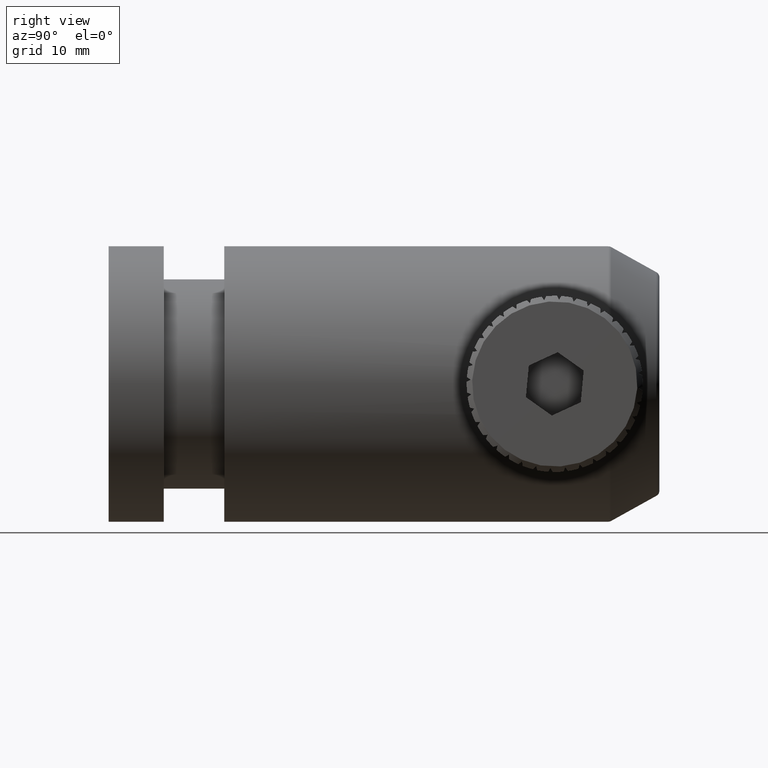
[diagram: clean part render]
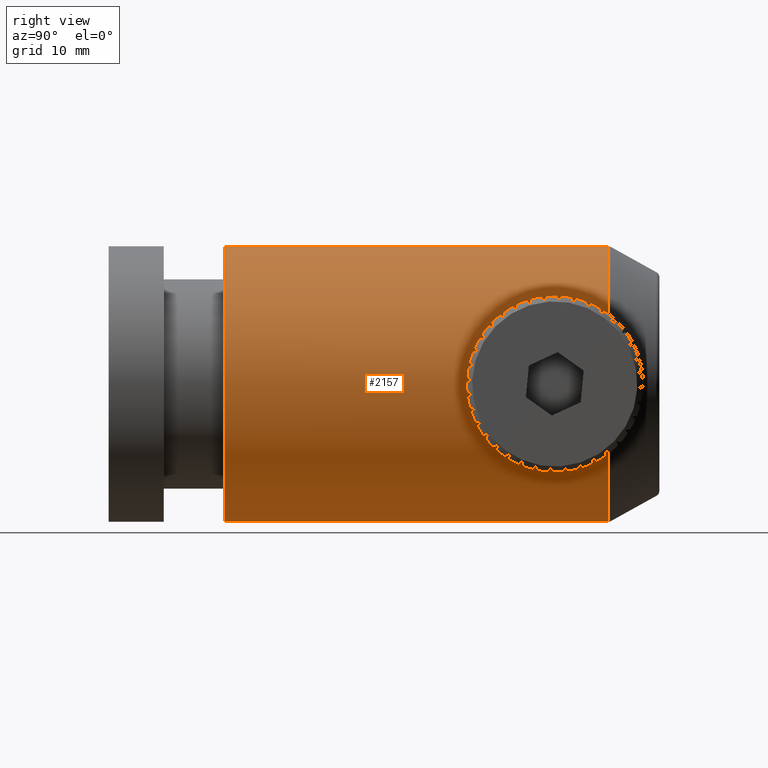
[diagram: same view with one face highlighted and labeled with its STEP entity id]
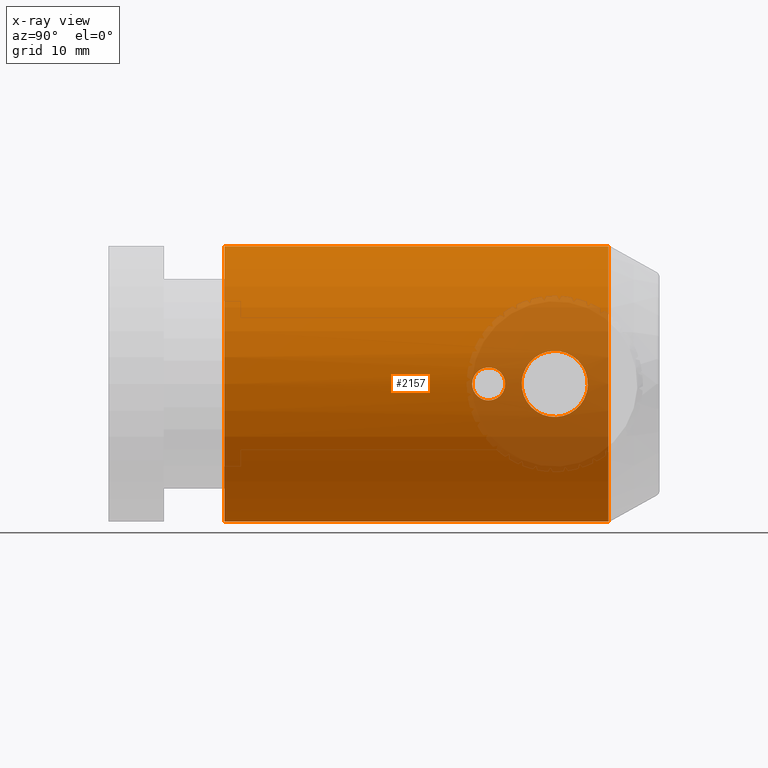
[diagram: x-ray of the same camera — body ghosted, the highlighted face saturated]
A machine part, right view. The second image highlights one B-rep face of the part: STEP entity #2157.
The next image is the same camera in x-ray: the body ghosted, the highlighted face saturated — about 16% of this face is hidden behind the body in this view.
In plain terms, the highlighted cylindrical surface (partial cylindrical patch) has radius 12.5 mm, axis along (-0, -1, -0).
Its self-contained STEP definition (entity closure, byte-faithful):
#62 = EDGE_LOOP ( 'NONE', ( #3802, #4870 ) ) ;
#143 = CARTESIAN_POINT ( 'NONE',  ( 8.979085875243944415, 27.57827545239257105, -2.794805594405598725 ) ) ;
#187 = CARTESIAN_POINT ( 'NONE',  ( 9.294317401501471565, 25.69015654449285790, 0.1503243900348047724 ) ) ;
#295 = CARTESIAN_POINT ( 'NONE',  ( -3.204778668925408081, -1.313612059609841731, 12.50000000000000000 ) ) ;
#354 = CARTESIAN_POINT ( 'NONE',  ( 9.284975426717135605, 25.72899438771105451, 0.5413697073677409266 ) ) ;
#403 = CARTESIAN_POINT ( 'NONE',  ( 9.038241287134486157, 30.31915226777572059, 2.524436542601555367 ) ) ;
#449 = CARTESIAN_POINT ( 'NONE',  ( 8.940450512637534430, 29.22795995841076078, 2.957344223499729807 ) ) ;
#522 = DIRECTION ( 'NONE',  ( 0.0000000000000000000, 0.0000000000000000000, 1.000000000000000000 ) ) ;
#542 = CARTESIAN_POINT ( 'NONE',  ( 9.204903389921662793, 22.88279855186688039, 1.499930399462187758 ) ) ;
#547 = ORIENTED_EDGE ( 'NONE', *, *, #4873, .T. ) ;
#585 = CARTESIAN_POINT ( 'NONE',  ( 9.295221331074595028, 21.18638794039016915, 0.09793511306896243718 ) ) ;
#614 = LINE ( 'NONE', #6234, #8294 ) ;
#639 = CARTESIAN_POINT ( 'NONE',  ( 9.295221331074591475, 24.18638794039016560, -2.591424933792135339E-15 ) ) ;
#712 = AXIS2_PLACEMENT_3D ( 'NONE', #6192, #4131, #522 ) ;
#744 = CARTESIAN_POINT ( 'NONE',  ( 8.940587165036291140, 28.14242673749529899, -2.956775256058381096 ) ) ;
#785 = CARTESIAN_POINT ( 'NONE',  ( 9.269307545164291895, 25.79554538581863099, -0.8255565456681704939 ) ) ;
#831 = CARTESIAN_POINT ( 'NONE',  ( 9.084389525700469648, 26.72650415562357651, -2.305151525173003257 ) ) ;
#886 = EDGE_CURVE ( 'NONE', #6245, #4474, #3851, .T. ) ;
#921 = CARTESIAN_POINT ( 'NONE',  ( 9.262588171472192045, 31.54775118645238052, -0.9224847574950779672 ) ) ;
#948 = VERTEX_POINT ( 'NONE', #1360 ) ;
#953 = CARTESIAN_POINT ( 'NONE',  ( 8.956566280400332758, 27.86008858570201241, 2.890742176345407533 ) ) ;
#966 = CARTESIAN_POINT ( 'NONE',  ( 9.211884100376778406, 22.26983743135785687, -1.441001621589988790 ) ) ;
#999 = CARTESIAN_POINT ( 'NONE',  ( 8.963613499397279583, 29.61184800982138299, 2.860543439079102690 ) ) ;
#1095 = CARTESIAN_POINT ( 'NONE',  ( 8.987546613366735215, 27.48753205401871469, 2.757155330657440118 ) ) ;
#1111 = CARTESIAN_POINT ( 'NONE',  ( 9.281256597127029551, 21.29421120716751403, -0.6445237261768737014 ) ) ;
#1142 = CARTESIAN_POINT ( 'NONE',  ( 9.178917836072315595, 31.15936609379050637, 1.709587579624948894 ) ) ;
#1148 = CARTESIAN_POINT ( 'NONE',  ( 9.286202109542387007, 21.26301140576385862, 0.4833947477268360493 ) ) ;
#1255 = B_SPLINE_CURVE_WITH_KNOTS ( 'NONE', 3,
 ( #966, #1843, #6587, #1111, #8097, #8653 ),
 .UNSPECIFIED., .F., .F.,
 ( 4, 2, 4 ),
 ( 0.0004206076575129325348, 0.001384055658565582414, 0.002347503659618232347 ),
 .UNSPECIFIED. ) ;
#1278 = CARTESIAN_POINT ( 'NONE',  ( 9.206084228357674704, 22.48948866386318812, 1.490253264649503029 ) ) ;
#1324 = CARTESIAN_POINT ( 'NONE',  ( 9.294317401501469789, 31.68261933628746618, -0.1503243900347983331 ) ) ;
#1334 = CARTESIAN_POINT ( 'NONE',  ( 9.224673907753942359, 23.39517371642908472, -1.326981502222166709 ) ) ;
#1360 = CARTESIAN_POINT ( 'NONE',  ( 9.211884100376778406, 22.26983743135785687, -1.441001621589988790 ) ) ;
#1436 = CARTESIAN_POINT ( 'NONE',  ( 9.220454222793327048, 26.01317179209888764, -1.375541327959403981 ) ) ;
#1565 = CARTESIAN_POINT ( 'NONE',  ( 9.143823657239680713, 30.97791158257230038, -1.946076008421848247 ) ) ;
#1613 = CARTESIAN_POINT ( 'NONE',  ( 9.048918969029720927, 30.39849255191162669, -2.471366614442847442 ) ) ;
#1642 = CARTESIAN_POINT ( 'NONE',  ( 9.269266366900772880, 31.57706025459604149, 0.8263277061840911264 ) ) ;
#1687 = CARTESIAN_POINT ( 'NONE',  ( 9.296700465981396988, 31.69256054173555981, 0.04782144557930775169 ) ) ;
#1733 = CARTESIAN_POINT ( 'NONE',  ( 9.210636211042023902, 26.05975488501934123, 1.462507615788432469 ) ) ;
#1780 = CARTESIAN_POINT ( 'NONE',  ( 9.239146828008568235, 31.44418935556493011, 1.197219804623973038 ) ) ;
#1833 = CARTESIAN_POINT ( 'NONE',  ( 9.238294905526110767, 21.77170442606307788, 1.192851831215622882 ) ) ;
#1843 = CARTESIAN_POINT ( 'NONE',  ( 9.222296484728833121, 21.95946194910451510, -1.351281344258762562 ) ) ;
#1880 = CARTESIAN_POINT ( 'NONE',  ( 9.295221331074591475, 24.18638794039016560, -2.591424933792135339E-15 ) ) ;
#2025 = CARTESIAN_POINT ( 'NONE',  ( 9.204410963603711693, 22.49259893837329471, -1.505395316746055201 ) ) ;
#2055 = VERTEX_POINT ( 'NONE', #5466 ) ;
#2067 = CARTESIAN_POINT ( 'NONE',  ( 9.214435310756540431, 23.18434556260480051, -1.419610999546433439 ) ) ;
#2119 = CARTESIAN_POINT ( 'NONE',  ( 9.072103285971888198, 30.55512266796988996, -2.354963753863603237 ) ) ;
#2157 = ADVANCED_FACE ( 'NONE', ( #8589, #7817, #4340 ), #5005, .T. ) ;
#2164 = CARTESIAN_POINT ( 'NONE',  ( 9.280586447248989401, 25.74782798200569900, -0.6355257212956747503 ) ) ;
#2423 = CARTESIAN_POINT ( 'NONE',  ( 8.933231354412493275, 29.03322807967127872, 2.986438593220741122 ) ) ;
#2515 = CARTESIAN_POINT ( 'NONE',  ( 9.108316663677982206, 30.77897004400473335, 2.158502318575136858 ) ) ;
#2562 = CARTESIAN_POINT ( 'NONE',  ( 9.295221331074591475, 24.18638794039016204, 0.09919487734910412136 ) ) ;
#2606 = CARTESIAN_POINT ( 'NONE',  ( 9.222341716886042207, 22.02189370267447543, 1.348373010837419450 ) ) ;
#2647 = CARTESIAN_POINT ( 'NONE',  ( 9.289511083272923742, 21.23461653781354386, 0.3898543741815261310 ) ) ;
#2735 = ORIENTED_EDGE ( 'NONE', *, *, #6193, .F. ) ;
#2769 = CARTESIAN_POINT ( 'NONE',  ( 9.295221331074591475, 21.18638794039016204, -2.570041990922767563E-15 ) ) ;
#2849 = CARTESIAN_POINT ( 'NONE',  ( 9.178752845103213431, 26.21423808227554275, -1.710752348948677781 ) ) ;
#2892 = CARTESIAN_POINT ( 'NONE',  ( 9.296672499566859926, 25.68033200390001625, -0.04549610834033109702 ) ) ;
#3104 = CARTESIAN_POINT ( 'NONE',  ( 9.294317401501469789, 31.68261933628746618, -0.1503243900347983331 ) ) ;
#3115 = B_SPLINE_CURVE_WITH_KNOTS ( 'NONE', 3,
 ( #639, #3253, #6221, #4116, #8366, #6082, #8226, #5514, #1334, #2067, #3428, #4872, #2025, #7690 ),
 .UNSPECIFIED., .F., .F.,
 ( 4, 2, 2, 2, 2, 2, 4 ),
 ( 0.007041378278594486936, 0.007387119390436432467, 0.007732860502278377131, 0.008424342725962267325, 0.008770083837804207652, 0.009115824949646147979, 0.009807307173330019959 ),
 .UNSPECIFIED. ) ;
#3246 = CARTESIAN_POINT ( 'NONE',  ( 9.213953469071796576, 22.20354280597187113, 1.423559954649155079 ) ) ;
#3253 = CARTESIAN_POINT ( 'NONE',  ( 9.295221331074593252, 24.18638794039016915, -0.1169038373374751694 ) ) ;
#3330 = CARTESIAN_POINT ( 'NONE',  ( 9.238349584649908408, 23.60857780583142329, 1.199090981212601825 ) ) ;
#3428 = CARTESIAN_POINT ( 'NONE',  ( 9.210382158728444679, 23.07280620827268436, -1.454040343290208037 ) ) ;
#3574 = CARTESIAN_POINT ( 'NONE',  ( 9.294355723047422302, 25.68986443915846962, -0.2446926194533831367 ) ) ;
#3628 = EDGE_CURVE ( 'NONE', #5807, #6335, #614, .T. ) ;
#3701 = CARTESIAN_POINT ( 'NONE',  ( 8.963535095444736811, 27.76235200080197885, -2.860868974183075508 ) ) ;
#3802 = ORIENTED_EDGE ( 'NONE', *, *, #886, .F. ) ;
#3825 = CARTESIAN_POINT ( 'NONE',  ( 9.006458467859676631, 27.31092582387454470, 2.673240243682317718 ) ) ;
#3851 = B_SPLINE_CURVE_WITH_KNOTS ( 'NONE', 3,
 ( #3104, #1687, #5924, #7266, #1642, #1780, #8683, #1142, #8729, #2515, #3875, #403, #7993, #3922, #999, #449, #2423, #5227, #5320, #5179, #953, #1095, #3825, #5977, #7313, #6764, #5274, #8038, #1733, #6665, #5827, #354, #8125, #4531 ),
 .UNSPECIFIED., .F., .F.,
 ( 4, 2, 2, 2, 2, 2, 2, 2, 2, 2, 2, 2, 2, 2, 2, 2, 4 ),
 ( 0.01397184915624165129, 0.01456003290153331207, 0.01514821664682497286, 0.01573640039211663191, 0.01632458413740829270, 0.01691276788269995349, 0.01750095162799161427, 0.01808913537328327506, 0.01867731911857493238, 0.01926550286386659316, 0.01985368660915825395, 0.02044187035444991474, 0.02103005409974157552, 0.02161823784503323631, 0.02220642159032489710, 0.02279460533561655788, 0.02338278908090821867 ),
 .UNSPECIFIED. ) ;
#3875 = CARTESIAN_POINT ( 'NONE',  ( 9.084323501110343813, 30.63482676413583405, 2.289603755352768388 ) ) ;
#3921 = ORIENTED_EDGE ( 'NONE', *, *, #4193, .T. ) ;
#3922 = CARTESIAN_POINT ( 'NONE',  ( 8.979399087918256583, 29.79764742531335386, 2.793415339617836946 ) ) ;
#4012 = CARTESIAN_POINT ( 'NONE',  ( 9.204890787759415716, 22.58898103183823025, 1.500034658616001826 ) ) ;
#4103 = DIRECTION ( 'NONE',  ( -0.0000000000000000000, -1.000000000000000000, -0.0000000000000000000 ) ) ;
#4116 = CARTESIAN_POINT ( 'NONE',  ( 9.287397637651089610, 24.11997081174517277, -0.4562558374849748355 ) ) ;
#4131 = DIRECTION ( 'NONE',  ( 0.0000000000000000000, 1.000000000000000000, 0.0000000000000000000 ) ) ;
#4193 = EDGE_CURVE ( 'NONE', #2055, #5807, #7463, .T. ) ;
#4208 = CARTESIAN_POINT ( 'NONE',  ( -3.204778668925409857, 38.18638794039016204, -7.703719777548943412E-31 ) ) ;
#4224 = CARTESIAN_POINT ( 'NONE',  ( 9.294317401501469789, 31.68261933628746618, -0.1503243900347983331 ) ) ;
#4263 = CARTESIAN_POINT ( 'NONE',  ( 8.930753603847064070, 28.92968956008570558, -2.996621087949511431 ) ) ;
#4339 = AXIS2_PLACEMENT_3D ( 'NONE', #7820, #6401, #5604 ) ;
#4340 = FACE_OUTER_BOUND ( 'NONE', #7828, .T. ) ;
#4354 = CARTESIAN_POINT ( 'NONE',  ( 9.239337903298411092, 25.92773227831953520, -1.195128956867367753 ) ) ;
#4402 = CARTESIAN_POINT ( 'NONE',  ( 9.035394134874797700, 27.04405347736306808, -2.541287842386536600 ) ) ;
#4474 = VERTEX_POINT ( 'NONE', #4766 ) ;
#4531 = CARTESIAN_POINT ( 'NONE',  ( 9.294317401501471565, 25.69015654449285790, 0.1503243900348047724 ) ) ;
#4629 = CARTESIAN_POINT ( 'NONE',  ( 9.227410400799067602, 21.93413065890675639, 1.301403244606147425 ) ) ;
#4766 = CARTESIAN_POINT ( 'NONE',  ( 9.294317401501471565, 25.69015654449285790, 0.1503243900348047724 ) ) ;
#4816 = CARTESIAN_POINT ( 'NONE',  ( 9.256015928360447731, 23.81605618770787913, 0.9916718122892765885 ) ) ;
#4870 = ORIENTED_EDGE ( 'NONE', *, *, #5500, .F. ) ;
#4872 = CARTESIAN_POINT ( 'NONE',  ( 9.202857803768230482, 22.72934889345495080, -1.517354258960986746 ) ) ;
#4873 = EDGE_CURVE ( 'NONE', #6335, #5788, #6305, .T. ) ;
#5005 = CYLINDRICAL_SURFACE ( 'NONE', #5516, 12.50000000000000000 ) ;
#5074 = ORIENTED_EDGE ( 'NONE', *, *, #3628, .T. ) ;
#5107 = CARTESIAN_POINT ( 'NONE',  ( 9.006219876497594257, 30.05995332823619748, -2.674373434860417120 ) ) ;
#5179 = CARTESIAN_POINT ( 'NONE',  ( 8.944943754261727165, 28.05134592083576095, 2.938558367392642534 ) ) ;
#5227 = CARTESIAN_POINT ( 'NONE',  ( 8.928370703639012973, 28.63817536396552654, 3.006125263652420276 ) ) ;
#5274 = CARTESIAN_POINT ( 'NONE',  ( 9.143639874171055837, 26.39584749465430846, 1.947245909389652807 ) ) ;
#5281 = LINE ( 'NONE', #6719, #6330 ) ;
#5320 = CARTESIAN_POINT ( 'NONE',  ( 8.930857570981620697, 28.43902110055869414, 2.996199808378079421 ) ) ;
#5413 = CARTESIAN_POINT ( 'NONE',  ( 9.210627896731343967, 22.29706588798140388, 1.451913378064814353 ) ) ;
#5460 = CARTESIAN_POINT ( 'NONE',  ( 9.261988621079840556, 23.87937448569741861, 0.9145375385982725813 ) ) ;
#5466 = CARTESIAN_POINT ( 'NONE',  ( -3.204778668925408081, 33.55682492629141933, -12.50000000000000000 ) ) ;
#5493 = ORIENTED_EDGE ( 'NONE', *, *, #5654, .T. ) ;
#5500 = EDGE_CURVE ( 'NONE', #4474, #6245, #8833, .T. ) ;
#5505 = CARTESIAN_POINT ( 'NONE',  ( 9.294032799877729900, 21.19620274178699404, 0.1974201415048855435 ) ) ;
#5514 = CARTESIAN_POINT ( 'NONE',  ( 9.230981123741843319, 23.49668839791580766, -1.267577455390991092 ) ) ;
#5516 = AXIS2_PLACEMENT_3D ( 'NONE', #4208, #5688, #7906 ) ;
#5548 = B_SPLINE_CURVE_WITH_KNOTS ( 'NONE', 3,
 ( #6856, #585, #5505, #2647, #1148, #8871, #8174, #6074, #8308, #6901, #1833, #4629, #2606, #3246, #5413, #1278, #4012, #542, #7457, #7592, #3330, #4816, #5460, #6167, #8964, #6945, #6769, #8261, #2562, #1880 ),
 .UNSPECIFIED., .F., .F.,
 ( 4, 2, 2, 2, 2, 2, 2, 2, 2, 2, 2, 2, 2, 2, 4 ),
 ( 0.002347503659618232347, 0.002640870823304245548, 0.002934237986990258749, 0.003227605150676272384, 0.003520972314362285586, 0.003814339478048298787, 0.004107706641734312422, 0.004401073805420326057, 0.004694440969106338825, 0.005281175296478375636, 0.005867909623850413314, 0.006161276787536431286, 0.006454643951222450125, 0.006748011114908468097, 0.007041378278594486936 ),
 .UNSPECIFIED. ) ;
#5604 = DIRECTION ( 'NONE',  ( 0.0000000000000000000, 0.0000000000000000000, 1.000000000000000000 ) ) ;
#5617 = CARTESIAN_POINT ( 'NONE',  ( 9.291933548671277521, 31.67267484215287965, -0.3485357749967609164 ) ) ;
#5654 = EDGE_CURVE ( 'NONE', #948, #7453, #1255, .T. ) ;
#5660 = CARTESIAN_POINT ( 'NONE',  ( 8.987261766808188668, 29.88203056386284828, -2.758393945155286797 ) ) ;
#5688 = DIRECTION ( 'NONE',  ( -0.0000000000000000000, -1.000000000000000000, -0.0000000000000000000 ) ) ;
#5706 = CARTESIAN_POINT ( 'NONE',  ( 8.944851683900207462, 29.32008332852687715, -2.938939226650397529 ) ) ;
#5747 = CARTESIAN_POINT ( 'NONE',  ( 9.155808941128418255, 26.33033224297702901, -1.867543453747924964 ) ) ;
#5788 = VERTEX_POINT ( 'NONE', #8317 ) ;
#5794 = CARTESIAN_POINT ( 'NONE',  ( 8.956655324027826381, 29.51354455280414868, -2.890347795382724350 ) ) ;
#5806 = EDGE_CURVE ( 'NONE', #7800, #948, #3115, .T. ) ;
#5807 = VERTEX_POINT ( 'NONE', #8879 ) ;
#5827 = CARTESIAN_POINT ( 'NONE',  ( 9.262389273746826746, 25.82588173228598905, 0.9256144007527394857 ) ) ;
#5924 = CARTESIAN_POINT ( 'NONE',  ( 9.294319440933245247, 31.68275750706533955, 0.2453308062108587873 ) ) ;
#5977 = CARTESIAN_POINT ( 'NONE',  ( 9.048692332306377040, 26.97608527676632306, 2.472442968647311723 ) ) ;
#6074 = CARTESIAN_POINT ( 'NONE',  ( 9.261939773420687416, 21.49391608741807502, 0.9151795415106086518 ) ) ;
#6082 = CARTESIAN_POINT ( 'NONE',  ( 9.266172060751252104, 23.92537586492482049, -0.8763646025401286010 ) ) ;
#6167 = CARTESIAN_POINT ( 'NONE',  ( 9.272870988639768441, 23.98818332026970168, 0.7516146590599518396 ) ) ;
#6192 = CARTESIAN_POINT ( 'NONE',  ( -3.204778668925409857, -1.313612059609841731, -7.703719777548943412E-31 ) ) ;
#6193 = EDGE_CURVE ( 'NONE', #2055, #5788, #5281, .T. ) ;
#6221 = CARTESIAN_POINT ( 'NONE',  ( 9.293583048181632833, 24.17290621679920193, -0.2315008686452443287 ) ) ;
#6234 = CARTESIAN_POINT ( 'NONE',  ( -3.204778668925408081, 38.18638794039016204, 12.50000000000000000 ) ) ;
#6245 = VERTEX_POINT ( 'NONE', #1324 ) ;
#6273 = EDGE_CURVE ( 'NONE', #7453, #7800, #5548, .T. ) ;
#6305 = CIRCLE ( 'NONE', #712, 12.50000000000000000 ) ;
#6330 = VECTOR ( 'NONE', #4103, 1000.000000000000000 ) ;
#6335 = VERTEX_POINT ( 'NONE', #295 ) ;
#6401 = DIRECTION ( 'NONE',  ( 0.0000000000000000000, -1.000000000000000000, 0.0000000000000000000 ) ) ;
#6502 = CARTESIAN_POINT ( 'NONE',  ( 9.189254758687960489, 31.21129700760573300, -1.631908893145492812 ) ) ;
#6541 = CARTESIAN_POINT ( 'NONE',  ( 8.928383200932501040, 28.73380700890465533, -3.006074617822043660 ) ) ;
#6587 = CARTESIAN_POINT ( 'NONE',  ( 9.244055665559415047, 21.68112395572271467, -1.158883605571294551 ) ) ;
#6665 = CARTESIAN_POINT ( 'NONE',  ( 9.247131624819072471, 25.89233272810288611, 1.109677973331048007 ) ) ;
#6719 = CARTESIAN_POINT ( 'NONE',  ( -3.204778668925409857, 38.18638794039016204, -12.50000000000000000 ) ) ;
#6764 = CARTESIAN_POINT ( 'NONE',  ( 9.119747313233961705, 26.52667485782328072, 2.091378650036788578 ) ) ;
#6769 = CARTESIAN_POINT ( 'NONE',  ( 9.289549224810368599, 24.13848588428546549, 0.3885534735353253777 ) ) ;
#6856 = CARTESIAN_POINT ( 'NONE',  ( 9.295221331074591475, 21.18638794039016204, -2.570041990922767563E-15 ) ) ;
#6901 = CARTESIAN_POINT ( 'NONE',  ( 9.244157566521336022, 21.69599519527032072, 1.130892163670289552 ) ) ;
#6945 = CARTESIAN_POINT ( 'NONE',  ( 9.286184619923520955, 24.10961161749660775, 0.4838425681154256974 ) ) ;
#7061 = CARTESIAN_POINT ( 'NONE',  ( 8.933214706829202711, 28.34067881735799332, -2.986506048583371431 ) ) ;
#7105 = CARTESIAN_POINT ( 'NONE',  ( 9.119426567725827937, 30.84425115725107958, -2.093239140994768377 ) ) ;
#7197 = CARTESIAN_POINT ( 'NONE',  ( 9.284891683818713659, 31.64341841251679810, -0.5425389761491042906 ) ) ;
#7240 = CARTESIAN_POINT ( 'NONE',  ( 9.210371105925343471, 31.31178294326046441, -1.464853702197305818 ) ) ;
#7266 = CARTESIAN_POINT ( 'NONE',  ( 9.280685087491708174, 31.62536433244070366, 0.6331157489297171148 ) ) ;
#7313 = CARTESIAN_POINT ( 'NONE',  ( 9.072293204240910569, 26.81638427916897527, 2.353999057743982881 ) ) ;
#7453 = VERTEX_POINT ( 'NONE', #2769 ) ;
#7457 = CARTESIAN_POINT ( 'NONE',  ( 9.209836228901384203, 23.08032364792371638, 1.460482334706510343 ) ) ;
#7463 = CIRCLE ( 'NONE', #4339, 12.50000000000000000 ) ;
#7592 = CARTESIAN_POINT ( 'NONE',  ( 9.226532754516787449, 23.44138859398691466, 1.310789077131866653 ) ) ;
#7690 = CARTESIAN_POINT ( 'NONE',  ( 9.211884100376778406, 22.26983743135785687, -1.441001621589988790 ) ) ;
#7800 = VERTEX_POINT ( 'NONE', #7930 ) ;
#7817 = FACE_BOUND ( 'NONE', #62, .T. ) ;
#7820 = CARTESIAN_POINT ( 'NONE',  ( -3.204778668925409857, 33.55682492629141933, -7.703719777548943412E-31 ) ) ;
#7828 = EDGE_LOOP ( 'NONE', ( #3921, #5074, #547, #2735 ) ) ;
#7906 = DIRECTION ( 'NONE',  ( 0.0000000000000000000, 0.0000000000000000000, -1.000000000000000000 ) ) ;
#7930 = CARTESIAN_POINT ( 'NONE',  ( 9.295221331074591475, 24.18638794039016560, -2.591424933792135339E-15 ) ) ;
#7993 = CARTESIAN_POINT ( 'NONE',  ( 9.016585558009934331, 30.15010020715669015, 2.625949980970923470 ) ) ;
#8038 = CARTESIAN_POINT ( 'NONE',  ( 9.189113828419737118, 26.16216404901055625, 1.632983744981858942 ) ) ;
#8097 = CARTESIAN_POINT ( 'NONE',  ( 9.295221331074591475, 21.18638794039015849, -0.3216290048744062657 ) ) ;
#8125 = CARTESIAN_POINT ( 'NONE',  ( 9.291963082277030495, 25.69997783606835640, 0.3460801297384431541 ) ) ;
#8174 = CARTESIAN_POINT ( 'NONE',  ( 9.272798582576719184, 21.38529053181468953, 0.7527869862905769427 ) ) ;
#8226 = CARTESIAN_POINT ( 'NONE',  ( 9.251055916611337082, 23.77343718694745789, -1.059094746982644386 ) ) ;
#8261 = CARTESIAN_POINT ( 'NONE',  ( 9.294041171111308230, 24.17664171615339797, 0.1967382125686959193 ) ) ;
#8294 = VECTOR ( 'NONE', #9033, 1000.000000000000000 ) ;
#8303 = ORIENTED_EDGE ( 'NONE', *, *, #6273, .T. ) ;
#8308 = CARTESIAN_POINT ( 'NONE',  ( 9.256076861309699311, 21.55599644150230887, 0.9909641439925828132 ) ) ;
#8317 = CARTESIAN_POINT ( 'NONE',  ( -3.204778668925409857, -1.313612059609841731, -12.50000000000000000 ) ) ;
#8366 = CARTESIAN_POINT ( 'NONE',  ( 9.282776612184104437, 24.07982134121925455, -0.5671153814576928021 ) ) ;
#8576 = ORIENTED_EDGE ( 'NONE', *, *, #5806, .T. ) ;
#8589 = FACE_BOUND ( 'NONE', #8865, .T. ) ;
#8605 = CARTESIAN_POINT ( 'NONE',  ( 9.247075757546880936, 31.48020855867925860, -1.110433087925722928 ) ) ;
#8653 = CARTESIAN_POINT ( 'NONE',  ( 9.295221331074591475, 21.18638794039016204, -2.570041990922767563E-15 ) ) ;
#8683 = CARTESIAN_POINT ( 'NONE',  ( 9.220654297667081778, 31.36053569744960612, 1.373770145627444483 ) ) ;
#8729 = CARTESIAN_POINT ( 'NONE',  ( 9.155509261209820338, 31.04080950553843721, 1.869420020548341110 ) ) ;
#8833 = B_SPLINE_CURVE_WITH_KNOTS ( 'NONE', 3,
 ( #187, #2892, #3574, #2164, #785, #4354, #1436, #2849, #5747, #831, #4402, #143, #3701, #744, #7061, #6541, #4263, #5706, #5794, #5660, #5107, #1613, #2119, #7105, #1565, #6502, #7240, #8605, #921, #7197, #5617, #4224 ),
 .UNSPECIFIED., .F., .F.,
 ( 4, 2, 2, 2, 2, 2, 2, 2, 2, 2, 2, 2, 2, 2, 2, 4 ),
 ( 0.004557795964153310911, 0.005146174288658827631, 0.005734552613164343483, 0.006322930937669859336, 0.006911309262175376056, 0.008088065911186412965, 0.008676444235691936624, 0.009264822560197460283, 0.009853200884702983942, 0.01044157920920850760, 0.01102995753371403126, 0.01161833585821955492, 0.01220671418272507858, 0.01279509250723060224, 0.01338347083173612763, 0.01397184915624165129 ),
 .UNSPECIFIED. ) ;
#8865 = EDGE_LOOP ( 'NONE', ( #8303, #8576, #5493 ) ) ;
#8871 = CARTESIAN_POINT ( 'NONE',  ( 9.277846000333328291, 21.33830834894918027, 0.6650959754764681486 ) ) ;
#8879 = CARTESIAN_POINT ( 'NONE',  ( -3.204778668925409857, 33.55682492629141933, 12.50000000000000000 ) ) ;
#8964 = CARTESIAN_POINT ( 'NONE',  ( 9.277824207197033601, 24.03426638991181719, 0.6655020293823495914 ) ) ;
#9033 = DIRECTION ( 'NONE',  ( -0.0000000000000000000, -1.000000000000000000, -0.0000000000000000000 ) ) ;